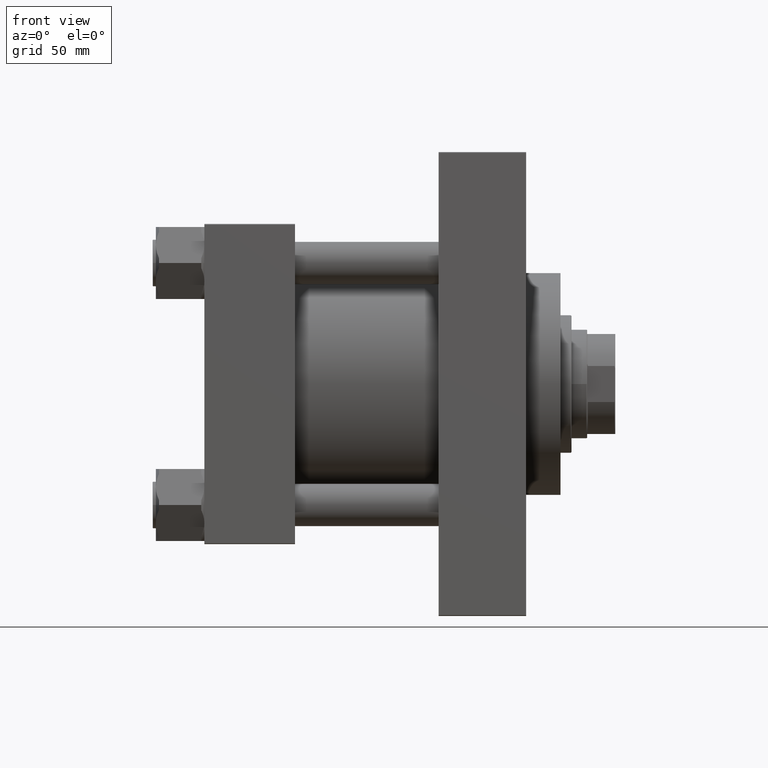
[diagram: clean part render]
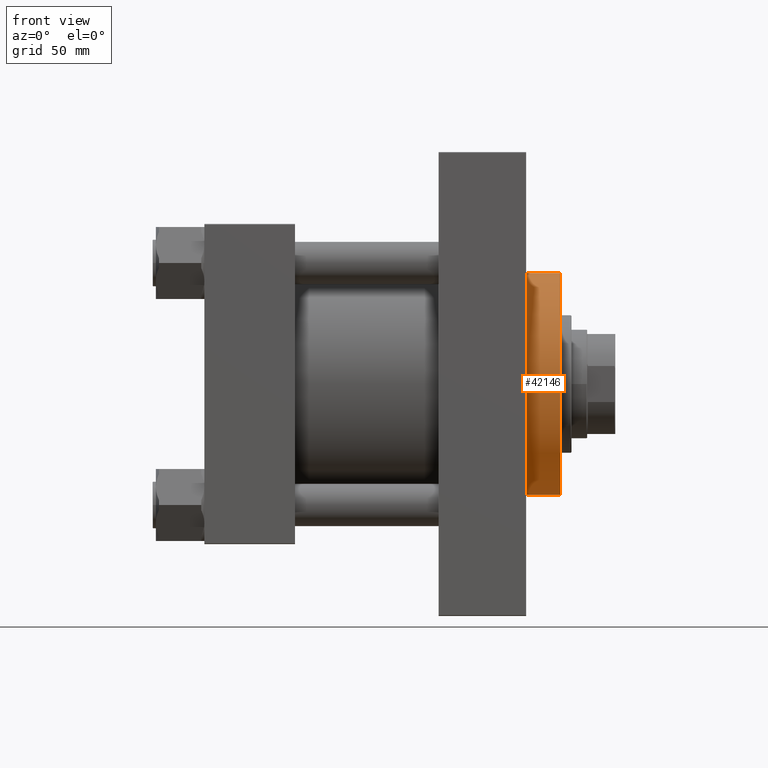
[diagram: same view with one face highlighted and labeled with its STEP entity id]
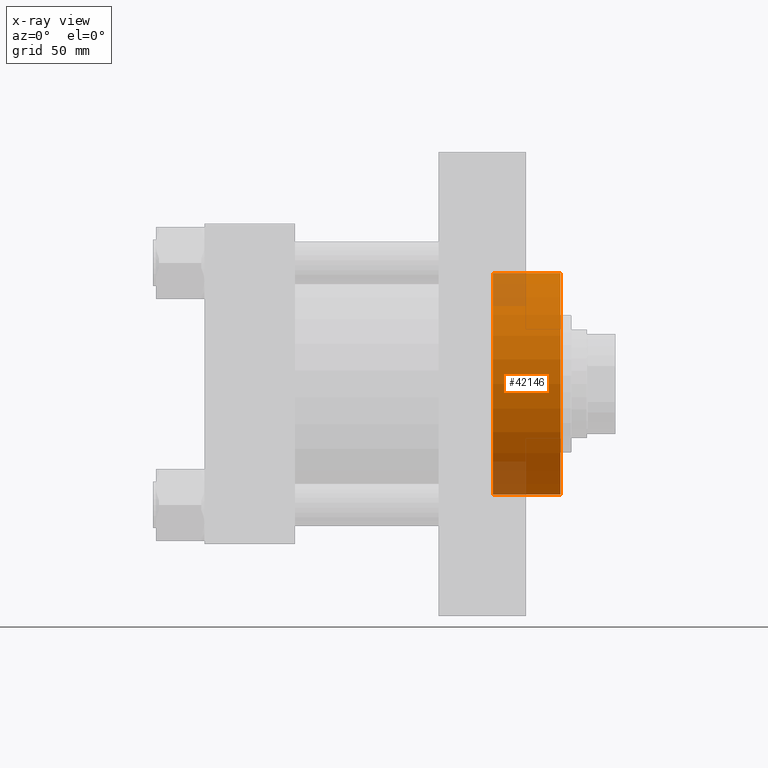
[diagram: x-ray of the same camera — body ghosted, the highlighted face saturated]
A machine part, front view. The second image highlights one B-rep face of the part: STEP entity #42146.
The next image is the same camera in x-ray: the body ghosted, the highlighted face saturated — about 15% of this face is hidden behind the body in this view.
In plain terms, the highlighted cylindrical surface (partial cylindrical patch) has radius 71 mm, axis along (-1, 0, 0).
Its self-contained STEP definition (entity closure, byte-faithful):
#1375 = CIRCLE ( 'NONE', #22917, 71.00000000000001421 ) ;
#1437 = CARTESIAN_POINT ( 'NONE',  ( 0.000000000000000000, 0.000000000000000000, 0.000000000000000000 ) ) ;
#1581 = CARTESIAN_POINT ( 'NONE',  ( 0.000000000000000000, 0.000000000000000000, 43.25999999999999801 ) ) ;
#2997 = FACE_OUTER_BOUND ( 'NONE', #28825, .T. ) ;
#4318 = DIRECTION ( 'NONE',  ( 1.000000000000000000, 0.000000000000000000, 0.000000000000000000 ) ) ;
#5425 = DIRECTION ( 'NONE',  ( 0.000000000000000000, 0.000000000000000000, 1.000000000000000000 ) ) ;
#9290 = DIRECTION ( 'NONE',  ( 1.000000000000000000, 0.000000000000000000, 0.000000000000000000 ) ) ;
#10120 = VECTOR ( 'NONE', #16335, 1000.000000000000000 ) ;
#12696 = CARTESIAN_POINT ( 'NONE',  ( -71.00000000000001421, 0.000000000000000000, 43.25999999999999801 ) ) ;
#13942 = CARTESIAN_POINT ( 'NONE',  ( 71.00000000000001421, 8.694992273946208141E-15, 0.000000000000000000 ) ) ;
#14209 = CARTESIAN_POINT ( 'NONE',  ( 71.00000000000001421, 8.694992273946208141E-15, 43.25999999999999801 ) ) ;
#14925 = ORIENTED_EDGE ( 'NONE', *, *, #28376, .F. ) ;
#15450 = EDGE_CURVE ( 'NONE', #29747, #32332, #47249, .T. ) ;
#16335 = DIRECTION ( 'NONE',  ( -0.000000000000000000, -0.000000000000000000, -1.000000000000000000 ) ) ;
#17092 = CARTESIAN_POINT ( 'NONE',  ( -71.00000000000001421, 0.000000000000000000, 0.000000000000000000 ) ) ;
#18334 = DIRECTION ( 'NONE',  ( -0.000000000000000000, -0.000000000000000000, -1.000000000000000000 ) ) ;
#20845 = ORIENTED_EDGE ( 'NONE', *, *, #23477, .T. ) ;
#21598 = ORIENTED_EDGE ( 'NONE', *, *, #15450, .T. ) ;
#21808 = CARTESIAN_POINT ( 'NONE',  ( -71.00000000000001421, 0.000000000000000000, 43.25999999999999801 ) ) ;
#22280 = CARTESIAN_POINT ( 'NONE',  ( 0.000000000000000000, 0.000000000000000000, 43.25999999999999801 ) ) ;
#22917 = AXIS2_PLACEMENT_3D ( 'NONE', #1437, #37349, #4318 ) ;
#22981 = CIRCLE ( 'NONE', #28392, 71.00000000000001421 ) ;
#23477 = EDGE_CURVE ( 'NONE', #32332, #42604, #1375, .T. ) ;
#25873 = VERTEX_POINT ( 'NONE', #21808 ) ;
#26801 = CYLINDRICAL_SURFACE ( 'NONE', #28678, 71.00000000000001421 ) ;
#28376 = EDGE_CURVE ( 'NONE', #29747, #25873, #22981, .T. ) ;
#28392 = AXIS2_PLACEMENT_3D ( 'NONE', #1581, #5425, #9290 ) ;
#28678 = AXIS2_PLACEMENT_3D ( 'NONE', #22280, #36752, #47349 ) ;
#28825 = EDGE_LOOP ( 'NONE', ( #14925, #21598, #20845, #31357 ) ) ;
#29747 = VERTEX_POINT ( 'NONE', #40762 ) ;
#31357 = ORIENTED_EDGE ( 'NONE', *, *, #36510, .F. ) ;
#32332 = VERTEX_POINT ( 'NONE', #13942 ) ;
#33932 = LINE ( 'NONE', #12696, #10120 ) ;
#36510 = EDGE_CURVE ( 'NONE', #25873, #42604, #33932, .T. ) ;
#36752 = DIRECTION ( 'NONE',  ( -0.000000000000000000, -0.000000000000000000, -1.000000000000000000 ) ) ;
#37349 = DIRECTION ( 'NONE',  ( 0.000000000000000000, 0.000000000000000000, 1.000000000000000000 ) ) ;
#39256 = VECTOR ( 'NONE', #18334, 1000.000000000000000 ) ;
#40762 = CARTESIAN_POINT ( 'NONE',  ( 71.00000000000001421, 8.694992273946208141E-15, 43.25999999999999801 ) ) ;
#42146 = ADVANCED_FACE ( 'NONE', ( #2997 ), #26801, .T. ) ;
#42604 = VERTEX_POINT ( 'NONE', #17092 ) ;
#47249 = LINE ( 'NONE', #14209, #39256 ) ;
#47349 = DIRECTION ( 'NONE',  ( -1.000000000000000000, 0.000000000000000000, 0.000000000000000000 ) ) ;